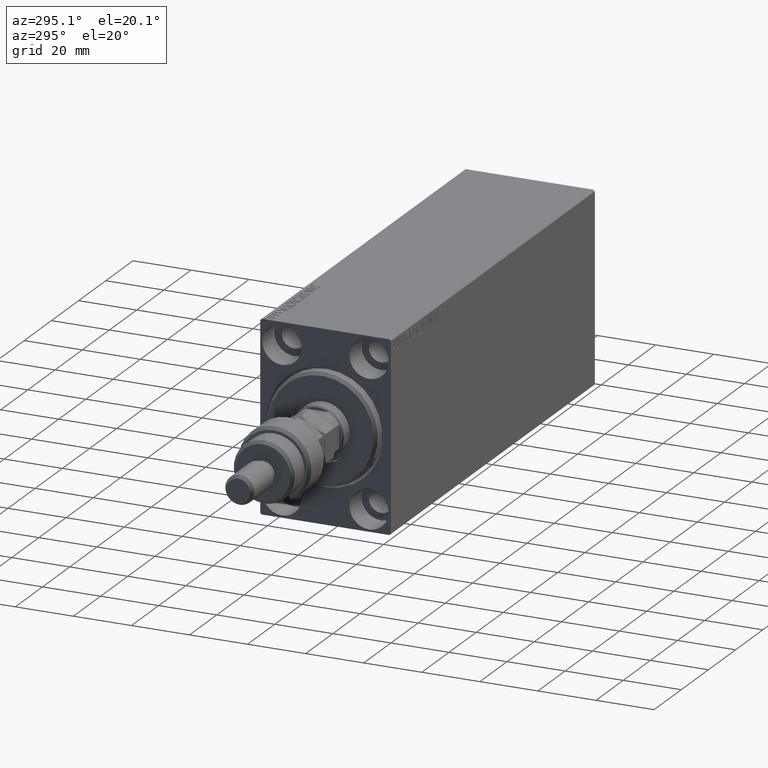
[diagram: clean part render]
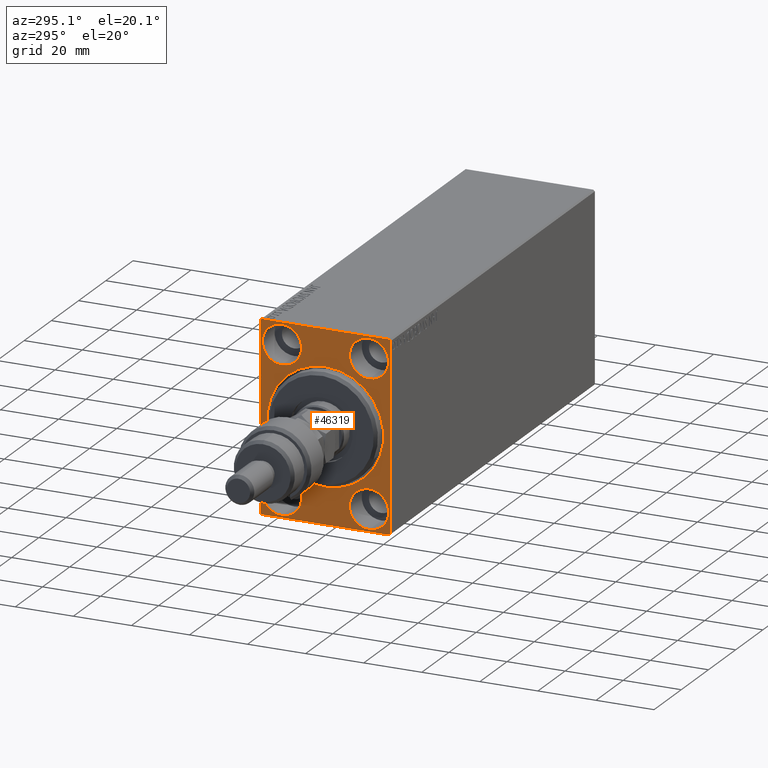
[diagram: same view with one face highlighted and labeled with its STEP entity id]
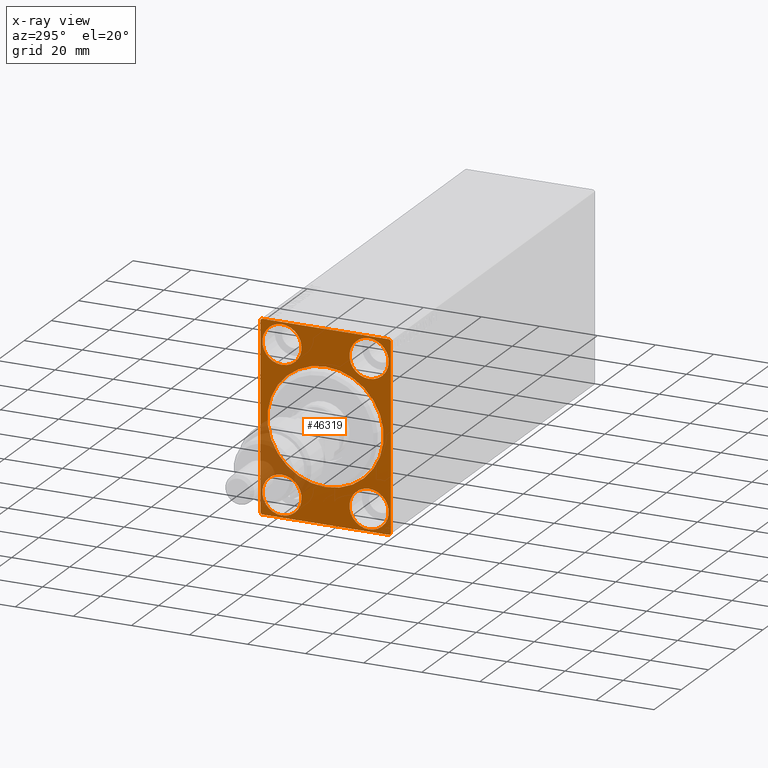
[diagram: x-ray of the same camera — body ghosted, the highlighted face saturated]
A machine part, auxiliary view. The second image highlights one B-rep face of the part: STEP entity #46319.
The next image is the same camera in x-ray: the body ghosted, the highlighted face saturated — about 13% of this face is hidden behind the body in this view.
In plain terms, the highlighted planar face has unit normal (1, 0, 0).
Its self-contained STEP definition (entity closure, byte-faithful):
#239 = CARTESIAN_POINT ( 'NONE',  ( 0.000000000000000000, 14.99999999999999645, -31.75000000000000000 ) ) ;
#496 = ORIENTED_EDGE ( 'NONE', *, *, #25726, .F. ) ;
#806 = VECTOR ( 'NONE', #28779, 999.9999999999998863 ) ;
#1269 = DIRECTION ( 'NONE',  ( 0.000000000000000000, 0.000000000000000000, -1.000000000000000000 ) ) ;
#1474 = DIRECTION ( 'NONE',  ( 1.000000000000000000, 0.000000000000000000, 0.000000000000000000 ) ) ;
#1475 = VERTEX_POINT ( 'NONE', #32709 ) ;
#1933 = DIRECTION ( 'NONE',  ( 0.000000000000000000, 0.000000000000000000, 1.000000000000000000 ) ) ;
#2029 = DIRECTION ( 'NONE',  ( 0.000000000000000000, 0.000000000000000000, 1.000000000000000000 ) ) ;
#2062 = DIRECTION ( 'NONE',  ( 0.000000000000000000, 0.000000000000000000, 1.000000000000000000 ) ) ;
#2124 = CARTESIAN_POINT ( 'NONE',  ( 0.000000000000000000, 0.000000000000000000, 0.000000000000000000 ) ) ;
#2138 = ORIENTED_EDGE ( 'NONE', *, *, #17971, .F. ) ;
#3530 = ORIENTED_EDGE ( 'NONE', *, *, #34885, .F. ) ;
#4034 = CIRCLE ( 'NONE', #38805, 19.99999999999998934 ) ;
#5033 = DIRECTION ( 'NONE',  ( 0.000000000000000000, -0.7071067811865474617, -0.7071067811865474617 ) ) ;
#5063 = CIRCLE ( 'NONE', #9641, 6.749999999999999112 ) ;
#5069 = EDGE_LOOP ( 'NONE', ( #25870, #13590, #24073, #46598, #24685, #32133, #11315, #10986 ) ) ;
#5153 = CARTESIAN_POINT ( 'NONE',  ( 0.000000000000000000, 15.00000000000000355, 25.00000000000000000 ) ) ;
#5760 = CARTESIAN_POINT ( 'NONE',  ( 0.000000000000000000, 22.49999999999999289, 32.50000000000000000 ) ) ;
#5762 = VERTEX_POINT ( 'NONE', #18139 ) ;
#5773 = AXIS2_PLACEMENT_3D ( 'NONE', #37895, #34354, #1933 ) ;
#6022 = DIRECTION ( 'NONE',  ( 0.000000000000000000, 1.000000000000000000, 0.000000000000000000 ) ) ;
#6347 = CARTESIAN_POINT ( 'NONE',  ( 0.000000000000000000, -22.50000000000000711, 31.99999999999999289 ) ) ;
#6455 = EDGE_CURVE ( 'NONE', #27105, #24287, #4034, .T. ) ;
#6690 = EDGE_LOOP ( 'NONE', ( #40589, #496 ) ) ;
#7228 = CARTESIAN_POINT ( 'NONE',  ( 0.000000000000000000, -22.50000000000000711, 31.99999999999999289 ) ) ;
#7511 = AXIS2_PLACEMENT_3D ( 'NONE', #15896, #40996, #37201 ) ;
#7528 = AXIS2_PLACEMENT_3D ( 'NONE', #43636, #43162, #35815 ) ;
#7784 = VERTEX_POINT ( 'NONE', #46172 ) ;
#8249 = EDGE_LOOP ( 'NONE', ( #24920, #40034 ) ) ;
#8258 = CARTESIAN_POINT ( 'NONE',  ( 0.000000000000000000, -21.99999999999999289, -32.50000000000000711 ) ) ;
#8442 = DIRECTION ( 'NONE',  ( -1.000000000000000000, 0.000000000000000000, 0.000000000000000000 ) ) ;
#8712 = DIRECTION ( 'NONE',  ( -1.000000000000000000, 0.000000000000000000, 0.000000000000000000 ) ) ;
#8778 = DIRECTION ( 'NONE',  ( 0.000000000000000000, 0.000000000000000000, -1.000000000000000000 ) ) ;
#8963 = CARTESIAN_POINT ( 'NONE',  ( 0.000000000000000000, 22.50000000000000000, -32.00000000000000711 ) ) ;
#9283 = LINE ( 'NONE', #23014, #43668 ) ;
#9365 = CARTESIAN_POINT ( 'NONE',  ( 0.000000000000000000, 15.00000000000000355, 25.00000000000000000 ) ) ;
#9415 = CARTESIAN_POINT ( 'NONE',  ( 0.000000000000000000, 22.49999999999999289, 32.00000000000002132 ) ) ;
#9442 = DIRECTION ( 'NONE',  ( -0.000000000000000000, 0.7071067811865474617, 0.7071067811865474617 ) ) ;
#9540 = VECTOR ( 'NONE', #6022, 1000.000000000000000 ) ;
#9641 = AXIS2_PLACEMENT_3D ( 'NONE', #40692, #36646, #43525 ) ;
#9813 = AXIS2_PLACEMENT_3D ( 'NONE', #5153, #8712, #2062 ) ;
#10268 = CARTESIAN_POINT ( 'NONE',  ( 0.000000000000000000, -21.99999999999999289, 32.49999999999999289 ) ) ;
#10473 = VECTOR ( 'NONE', #37943, 1000.000000000000000 ) ;
#10797 = EDGE_LOOP ( 'NONE', ( #3530, #2138 ) ) ;
#10886 = EDGE_CURVE ( 'NONE', #24287, #27105, #45021, .T. ) ;
#10986 = ORIENTED_EDGE ( 'NONE', *, *, #41324, .T. ) ;
#11315 = ORIENTED_EDGE ( 'NONE', *, *, #18731, .F. ) ;
#11578 = DIRECTION ( 'NONE',  ( 0.000000000000000000, 0.000000000000000000, 1.000000000000000000 ) ) ;
#11814 = EDGE_CURVE ( 'NONE', #35470, #5762, #13263, .T. ) ;
#12159 = CARTESIAN_POINT ( 'NONE',  ( 0.000000000000000000, 0.000000000000000000, 19.99999999999998934 ) ) ;
#12351 = EDGE_LOOP ( 'NONE', ( #40028, #14124 ) ) ;
#12861 = VECTOR ( 'NONE', #9442, 1000.000000000000114 ) ;
#12991 = EDGE_CURVE ( 'NONE', #37479, #21963, #26058, .T. ) ;
#13263 = CIRCLE ( 'NONE', #39713, 6.749999999999999112 ) ;
#13350 = CARTESIAN_POINT ( 'NONE',  ( 0.000000000000000000, -22.50000000000000711, -32.50000000000000711 ) ) ;
#13590 = ORIENTED_EDGE ( 'NONE', *, *, #27816, .T. ) ;
#14124 = ORIENTED_EDGE ( 'NONE', *, *, #25619, .F. ) ;
#14344 = CARTESIAN_POINT ( 'NONE',  ( 0.000000000000000000, 22.00000000000000711, 32.50000000000000000 ) ) ;
#14881 = LINE ( 'NONE', #36410, #42380 ) ;
#15118 = VERTEX_POINT ( 'NONE', #8258 ) ;
#15167 = EDGE_LOOP ( 'NONE', ( #25153, #33045 ) ) ;
#15215 = VERTEX_POINT ( 'NONE', #8963 ) ;
#15226 = VERTEX_POINT ( 'NONE', #9415 ) ;
#15323 = EDGE_CURVE ( 'NONE', #38822, #1475, #17120, .T. ) ;
#15579 = DIRECTION ( 'NONE',  ( -1.000000000000000000, 0.000000000000000000, 0.000000000000000000 ) ) ;
#15896 = CARTESIAN_POINT ( 'NONE',  ( 0.000000000000000000, -14.99999999999999645, 25.00000000000000000 ) ) ;
#15941 = LINE ( 'NONE', #5760, #10473 ) ;
#16100 = FACE_BOUND ( 'NONE', #10797, .T. ) ;
#16564 = CIRCLE ( 'NONE', #25600, 6.749999999999999112 ) ;
#17120 = CIRCLE ( 'NONE', #37527, 6.749999999999999112 ) ;
#17971 = EDGE_CURVE ( 'NONE', #18533, #7784, #29951, .T. ) ;
#18139 = CARTESIAN_POINT ( 'NONE',  ( 0.000000000000000000, 15.00000000000000355, 18.25000000000000355 ) ) ;
#18424 = LINE ( 'NONE', #22934, #19791 ) ;
#18533 = VERTEX_POINT ( 'NONE', #38101 ) ;
#18731 = EDGE_CURVE ( 'NONE', #15118, #41036, #30653, .T. ) ;
#19350 = CARTESIAN_POINT ( 'NONE',  ( 0.000000000000000000, -14.99999999999999645, 25.00000000000000000 ) ) ;
#19791 = VECTOR ( 'NONE', #44240, 1000.000000000000000 ) ;
#20078 = LINE ( 'NONE', #6347, #12861 ) ;
#20523 = EDGE_CURVE ( 'NONE', #27298, #26662, #5063, .T. ) ;
#20832 = CARTESIAN_POINT ( 'NONE',  ( 0.000000000000000000, -22.50000000000000711, -31.99999999999997868 ) ) ;
#21114 = CARTESIAN_POINT ( 'NONE',  ( 0.000000000000000000, -14.99999999999999645, 31.75000000000000000 ) ) ;
#21883 = EDGE_CURVE ( 'NONE', #15215, #41036, #9283, .T. ) ;
#21963 = VERTEX_POINT ( 'NONE', #20832 ) ;
#22107 = AXIS2_PLACEMENT_3D ( 'NONE', #2124, #40723, #8778 ) ;
#22219 = DIRECTION ( 'NONE',  ( -1.000000000000000000, 0.000000000000000000, 0.000000000000000000 ) ) ;
#22281 = FACE_BOUND ( 'NONE', #6690, .T. ) ;
#22934 = CARTESIAN_POINT ( 'NONE',  ( 0.000000000000000000, 22.50000000000000000, -32.50000000000000711 ) ) ;
#22962 = FACE_OUTER_BOUND ( 'NONE', #5069, .T. ) ;
#23014 = CARTESIAN_POINT ( 'NONE',  ( 0.000000000000000000, 22.50000000000000000, -32.00000000000000711 ) ) ;
#24073 = ORIENTED_EDGE ( 'NONE', *, *, #24366, .F. ) ;
#24135 = CIRCLE ( 'NONE', #7528, 6.749999999999999112 ) ;
#24137 = CARTESIAN_POINT ( 'NONE',  ( 0.000000000000000000, 14.99999999999999645, -25.00000000000000000 ) ) ;
#24287 = VERTEX_POINT ( 'NONE', #12159 ) ;
#24366 = EDGE_CURVE ( 'NONE', #26493, #44244, #15941, .T. ) ;
#24685 = ORIENTED_EDGE ( 'NONE', *, *, #44638, .F. ) ;
#24920 = ORIENTED_EDGE ( 'NONE', *, *, #10886, .T. ) ;
#25153 = ORIENTED_EDGE ( 'NONE', *, *, #11814, .F. ) ;
#25369 = VECTOR ( 'NONE', #33161, 1000.000000000000000 ) ;
#25600 = AXIS2_PLACEMENT_3D ( 'NONE', #24137, #22219, #11578 ) ;
#25619 = EDGE_CURVE ( 'NONE', #1475, #38822, #40013, .T. ) ;
#25726 = EDGE_CURVE ( 'NONE', #26662, #27298, #16564, .T. ) ;
#25870 = ORIENTED_EDGE ( 'NONE', *, *, #12991, .F. ) ;
#26058 = LINE ( 'NONE', #40510, #25369 ) ;
#26493 = VERTEX_POINT ( 'NONE', #38362 ) ;
#26662 = VERTEX_POINT ( 'NONE', #239 ) ;
#26745 = FACE_BOUND ( 'NONE', #15167, .T. ) ;
#26792 = DIRECTION ( 'NONE',  ( 0.000000000000000000, 0.000000000000000000, -1.000000000000000000 ) ) ;
#27105 = VERTEX_POINT ( 'NONE', #28559 ) ;
#27127 = CARTESIAN_POINT ( 'NONE',  ( 0.000000000000000000, 14.99999999999999645, -18.25000000000000355 ) ) ;
#27298 = VERTEX_POINT ( 'NONE', #27127 ) ;
#27816 = EDGE_CURVE ( 'NONE', #37479, #44244, #20078, .T. ) ;
#28366 = DIRECTION ( 'NONE',  ( -0.000000000000000000, -0.7071067811865376918, 0.7071067811865574537 ) ) ;
#28559 = CARTESIAN_POINT ( 'NONE',  ( 0.000000000000000000, 2.449293598294705330E-15, -19.99999999999998934 ) ) ;
#28779 = DIRECTION ( 'NONE',  ( -0.000000000000000000, 0.7071067811865525687, -0.7071067811865425767 ) ) ;
#29018 = LINE ( 'NONE', #14344, #806 ) ;
#29656 = CARTESIAN_POINT ( 'NONE',  ( 0.000000000000000000, 0.000000000000000000, 0.000000000000000000 ) ) ;
#29951 = CIRCLE ( 'NONE', #5773, 6.749999999999999112 ) ;
#30241 = CIRCLE ( 'NONE', #9813, 6.749999999999999112 ) ;
#30653 = LINE ( 'NONE', #13350, #9540 ) ;
#32133 = ORIENTED_EDGE ( 'NONE', *, *, #21883, .T. ) ;
#32709 = CARTESIAN_POINT ( 'NONE',  ( 0.000000000000000000, -14.99999999999999645, 18.25000000000000355 ) ) ;
#33045 = ORIENTED_EDGE ( 'NONE', *, *, #39474, .F. ) ;
#33161 = DIRECTION ( 'NONE',  ( 0.000000000000000000, 0.000000000000000000, -1.000000000000000000 ) ) ;
#33415 = FACE_BOUND ( 'NONE', #8249, .T. ) ;
#34354 = DIRECTION ( 'NONE',  ( -1.000000000000000000, 0.000000000000000000, 0.000000000000000000 ) ) ;
#34885 = EDGE_CURVE ( 'NONE', #7784, #18533, #24135, .T. ) ;
#35470 = VERTEX_POINT ( 'NONE', #43702 ) ;
#35815 = DIRECTION ( 'NONE',  ( 0.000000000000000000, 0.000000000000000000, 1.000000000000000000 ) ) ;
#36410 = CARTESIAN_POINT ( 'NONE',  ( 0.000000000000000000, -21.99999999999999289, -32.50000000000000711 ) ) ;
#36646 = DIRECTION ( 'NONE',  ( -1.000000000000000000, 0.000000000000000000, 0.000000000000000000 ) ) ;
#36959 = CARTESIAN_POINT ( 'NONE',  ( 0.000000000000000000, 0.000000000000000000, 0.000000000000000000 ) ) ;
#37201 = DIRECTION ( 'NONE',  ( 0.000000000000000000, 0.000000000000000000, 1.000000000000000000 ) ) ;
#37399 = PLANE ( 'NONE',  #22107 ) ;
#37479 = VERTEX_POINT ( 'NONE', #7228 ) ;
#37527 = AXIS2_PLACEMENT_3D ( 'NONE', #19350, #15579, #44460 ) ;
#37895 = CARTESIAN_POINT ( 'NONE',  ( 0.000000000000000000, -15.00000000000000355, -25.00000000000000000 ) ) ;
#37943 = DIRECTION ( 'NONE',  ( 0.000000000000000000, -1.000000000000000000, -1.541976423090495387E-16 ) ) ;
#38101 = CARTESIAN_POINT ( 'NONE',  ( 0.000000000000000000, -15.00000000000000355, -31.75000000000000000 ) ) ;
#38362 = CARTESIAN_POINT ( 'NONE',  ( 0.000000000000000000, 22.00000000000000711, 32.50000000000000000 ) ) ;
#38805 = AXIS2_PLACEMENT_3D ( 'NONE', #36959, #1474, #26792 ) ;
#38822 = VERTEX_POINT ( 'NONE', #21114 ) ;
#39474 = EDGE_CURVE ( 'NONE', #5762, #35470, #30241, .T. ) ;
#39713 = AXIS2_PLACEMENT_3D ( 'NONE', #9365, #8442, #2029 ) ;
#40013 = CIRCLE ( 'NONE', #7511, 6.749999999999999112 ) ;
#40028 = ORIENTED_EDGE ( 'NONE', *, *, #15323, .F. ) ;
#40034 = ORIENTED_EDGE ( 'NONE', *, *, #6455, .T. ) ;
#40081 = DIRECTION ( 'NONE',  ( 1.000000000000000000, 0.000000000000000000, 0.000000000000000000 ) ) ;
#40510 = CARTESIAN_POINT ( 'NONE',  ( 0.000000000000000000, -22.50000000000000711, 32.49999999999999289 ) ) ;
#40589 = ORIENTED_EDGE ( 'NONE', *, *, #20523, .F. ) ;
#40692 = CARTESIAN_POINT ( 'NONE',  ( 0.000000000000000000, 14.99999999999999645, -25.00000000000000000 ) ) ;
#40723 = DIRECTION ( 'NONE',  ( 1.000000000000000000, 0.000000000000000000, 0.000000000000000000 ) ) ;
#40787 = CARTESIAN_POINT ( 'NONE',  ( 0.000000000000000000, 21.99999999999998579, -32.50000000000000711 ) ) ;
#40996 = DIRECTION ( 'NONE',  ( -1.000000000000000000, 0.000000000000000000, 0.000000000000000000 ) ) ;
#41036 = VERTEX_POINT ( 'NONE', #40787 ) ;
#41324 = EDGE_CURVE ( 'NONE', #15118, #21963, #14881, .T. ) ;
#41623 = EDGE_CURVE ( 'NONE', #26493, #15226, #29018, .T. ) ;
#41979 = AXIS2_PLACEMENT_3D ( 'NONE', #29656, #40081, #1269 ) ;
#42380 = VECTOR ( 'NONE', #28366, 999.9999999999998863 ) ;
#43162 = DIRECTION ( 'NONE',  ( -1.000000000000000000, 0.000000000000000000, 0.000000000000000000 ) ) ;
#43525 = DIRECTION ( 'NONE',  ( 0.000000000000000000, 0.000000000000000000, 1.000000000000000000 ) ) ;
#43636 = CARTESIAN_POINT ( 'NONE',  ( 0.000000000000000000, -15.00000000000000355, -25.00000000000000000 ) ) ;
#43668 = VECTOR ( 'NONE', #5033, 1000.000000000000114 ) ;
#43702 = CARTESIAN_POINT ( 'NONE',  ( 0.000000000000000000, 15.00000000000000355, 31.75000000000000000 ) ) ;
#44073 = FACE_BOUND ( 'NONE', #12351, .T. ) ;
#44240 = DIRECTION ( 'NONE',  ( 0.000000000000000000, -1.067522139062650425E-16, 1.000000000000000000 ) ) ;
#44244 = VERTEX_POINT ( 'NONE', #10268 ) ;
#44460 = DIRECTION ( 'NONE',  ( 0.000000000000000000, 0.000000000000000000, 1.000000000000000000 ) ) ;
#44638 = EDGE_CURVE ( 'NONE', #15215, #15226, #18424, .T. ) ;
#45021 = CIRCLE ( 'NONE', #41979, 19.99999999999998934 ) ;
#46172 = CARTESIAN_POINT ( 'NONE',  ( 0.000000000000000000, -15.00000000000000355, -18.25000000000000355 ) ) ;
#46319 = ADVANCED_FACE ( 'NONE', ( #33415, #22281, #44073, #26745, #16100, #22962 ), #37399, .F. ) ;
#46598 = ORIENTED_EDGE ( 'NONE', *, *, #41623, .T. ) ;